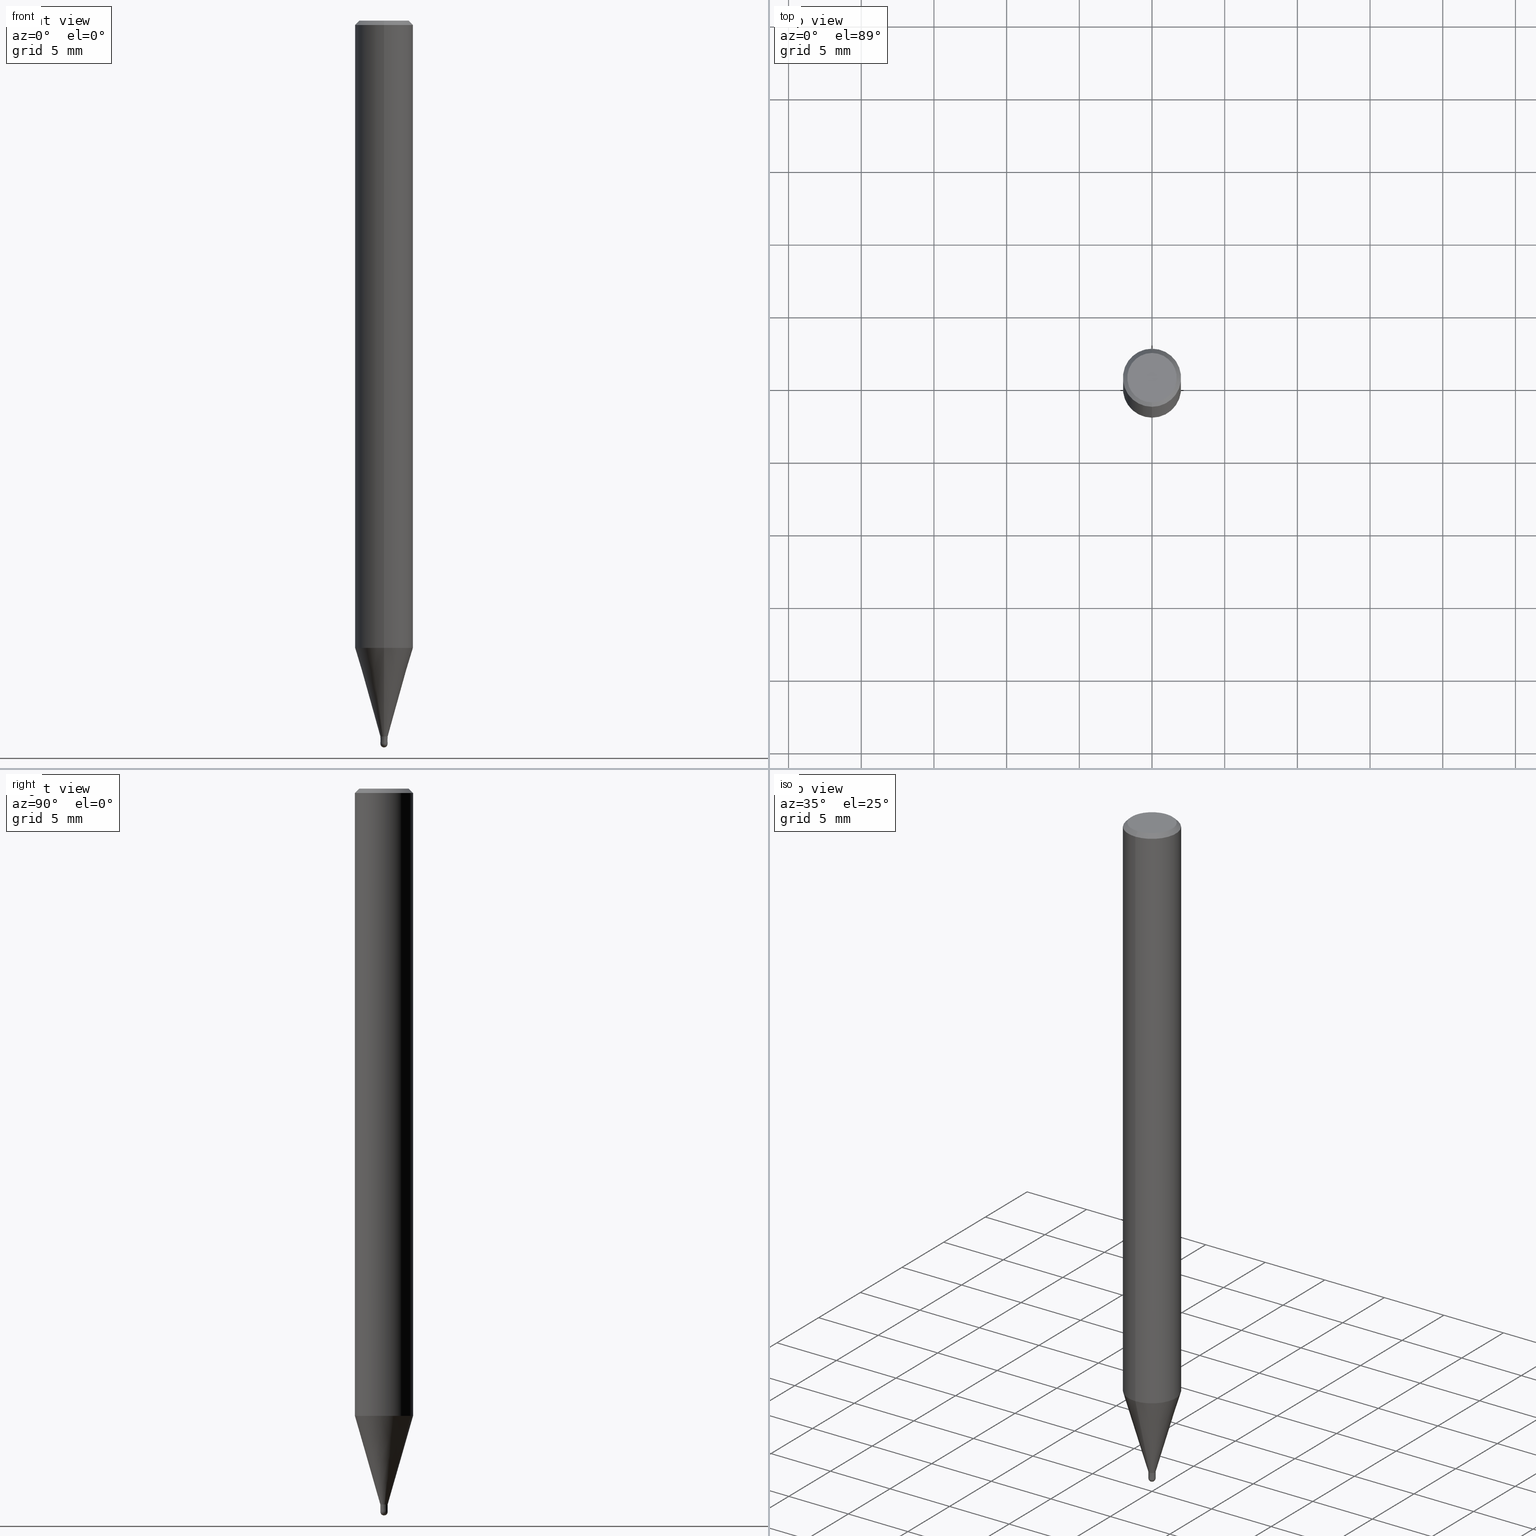
[diagram: canonical four-view strip — front | top / right | iso, engineering-drawing reading convention]
A machine part, canonical four-view strip (front | top / right | iso — engineering-drawing reading convention). The complete STEP part file that produces these views, byte-faithful:
ISO-10303-21;
HEADER;
FILE_DESCRIPTION(('no description'),'unknown implementation level');
FILE_NAME('HSB2005-0075-Huellk.stp','  ',('CIMSOURCE GmbH'),('CADClick - KiM GmbH - www.kimweb.de'),'unknown preprocess','ACIS','unknown authorization');
FILE_SCHEMA(('automotive_design'));
ENDSEC;
DATA;
#1=MECHANICAL_DESIGN_GEOMETRIC_PRESENTATION_REPRESENTATION(' ',(#14,#15,#16,#17,#18,#19,#20,#21,#22,#23,#24,#25,#26,#27,#28,#29,#30,#31,#32,#33,#34,#35,#36,#37,#38,#39,#40,#41,#42,#43,#44,#45,#46,#47,#48,#49,#50,#51,#52,#53,#54,#55,#56,#57,#58,#59,#60,#61,#62,#63,#64,#65,#66),#10);
#2=PRODUCT_DEFINITION_CONTEXT('',#67,'design');
#3=APPLICATION_PROTOCOL_DEFINITION('INTERNATIONAL STANDARD','automotive_design',1994,#67);
#4=PRODUCT_CATEGORY_RELATIONSHIP('NONE','NONE',#68,#69);
#5=SHAPE_DEFINITION_REPRESENTATION(#70,#71);
#6=PRODUCT_DEFINITION_CONTEXT('',#72,'design');
#7=APPLICATION_PROTOCOL_DEFINITION('INTERNATIONAL STANDARD','automotive_design',1994,#72);
#8=PRODUCT_CATEGORY_RELATIONSHIP('NONE','NONE',#73,#74);
#9=SHAPE_DEFINITION_REPRESENTATION(#75,#76);
#10= (GEOMETRIC_REPRESENTATION_CONTEXT(3)GLOBAL_UNCERTAINTY_ASSIGNED_CONTEXT((#79))GLOBAL_UNIT_ASSIGNED_CONTEXT((#81,#82,#83))REPRESENTATION_CONTEXT('NONE','WORKSPACE'));
#14=STYLED_ITEM('',(#85),#86);
#15=STYLED_ITEM('',(#87),#88);
#16=STYLED_ITEM('',(#89),#90);
#17=STYLED_ITEM('',(#91),#92);
#18=STYLED_ITEM('',(#93),#94);
#19=STYLED_ITEM('',(#95),#96);
#20=STYLED_ITEM('',(#97),#98);
#21=STYLED_ITEM('',(#99),#100);
#22=STYLED_ITEM('',(#101),#102);
#23=STYLED_ITEM('',(#103),#104);
#24=STYLED_ITEM('',(#105),#106);
#25=STYLED_ITEM('',(#107),#108);
#26=STYLED_ITEM('',(#109),#110);
#27=STYLED_ITEM('',(#111),#112);
#28=STYLED_ITEM('',(#113),#114);
#29=STYLED_ITEM('',(#115),#116);
#30=STYLED_ITEM('',(#117),#118);
#31=STYLED_ITEM('',(#119),#120);
#32=STYLED_ITEM('',(#121),#122);
#33=STYLED_ITEM('',(#123),#124);
#34=STYLED_ITEM('',(#125),#126);
#35=STYLED_ITEM('',(#127),#128);
#36=STYLED_ITEM('',(#129),#130);
#37=STYLED_ITEM('',(#131),#132);
#38=STYLED_ITEM('',(#133),#134);
#39=STYLED_ITEM('',(#135),#136);
#40=STYLED_ITEM('',(#137),#138);
#41=STYLED_ITEM('',(#139),#140);
#42=STYLED_ITEM('',(#141),#142);
#43=STYLED_ITEM('',(#143),#144);
#44=STYLED_ITEM('',(#145),#146);
#45=STYLED_ITEM('',(#147),#148);
#46=STYLED_ITEM('',(#149),#150);
#47=STYLED_ITEM('',(#151),#152);
#48=STYLED_ITEM('',(#153),#154);
#49=STYLED_ITEM('',(#155),#156);
#50=STYLED_ITEM('',(#157),#158);
#51=STYLED_ITEM('',(#159),#160);
#52=STYLED_ITEM('',(#161),#162);
#53=STYLED_ITEM('',(#163),#164);
#54=STYLED_ITEM('',(#165),#166);
#55=STYLED_ITEM('',(#167),#168);
#56=STYLED_ITEM('',(#169),#170);
#57=STYLED_ITEM('',(#171),#172);
#58=STYLED_ITEM('',(#173),#174);
#59=STYLED_ITEM('',(#175),#176);
#60=STYLED_ITEM('',(#177),#178);
#61=STYLED_ITEM('',(#179),#180);
#62=STYLED_ITEM('',(#181),#182);
#63=STYLED_ITEM('',(#183),#184);
#64=STYLED_ITEM('',(#185),#186);
#65=STYLED_ITEM('',(#187),#188);
#66=STYLED_ITEM('',(#189),#190);
#67=APPLICATION_CONTEXT(' ');
#68=PRODUCT_CATEGORY('part','NONE');
#69=PRODUCT_RELATED_PRODUCT_CATEGORY('detail',' ',(#191));
#70=PRODUCT_DEFINITION_SHAPE('NONE','NONE',#192);
#71=ADVANCED_BREP_SHAPE_REPRESENTATION('1',(#112,#193),#10);
#72=APPLICATION_CONTEXT(' ');
#73=PRODUCT_CATEGORY('part','NONE');
#74=PRODUCT_RELATED_PRODUCT_CATEGORY('detail',' ',(#194));
#75=PRODUCT_DEFINITION_SHAPE('NONE','NONE',#195);
#76=ADVANCED_BREP_SHAPE_REPRESENTATION('2',(#176,#196),#10);
#79=UNCERTAINTY_MEASURE_WITH_UNIT(LENGTH_MEASURE(1.0E-006),#81,'','');
#81= (CONVERSION_BASED_UNIT('MILLIMETRE',#199)LENGTH_UNIT()NAMED_UNIT(#202));
#82= (NAMED_UNIT(#204)PLANE_ANGLE_UNIT()SI_UNIT($,.RADIAN.));
#83= (NAMED_UNIT(#204)SOLID_ANGLE_UNIT()SI_UNIT($,.STERADIAN.));
#85=PRESENTATION_STYLE_ASSIGNMENT((#210));
#86=VERTEX_POINT('',#211);
#87=PRESENTATION_STYLE_ASSIGNMENT((#212));
#88=ADVANCED_FACE('',(#213),#214,.T.);
#89=PRESENTATION_STYLE_ASSIGNMENT((#215));
#90=ADVANCED_FACE('',(#216),#217,.T.);
#91=PRESENTATION_STYLE_ASSIGNMENT((#218));
#92=EDGE_CURVE('',#142,#126,#219,.T.);
#93=PRESENTATION_STYLE_ASSIGNMENT((#220));
#94=EDGE_CURVE('',#126,#86,#221,.T.);
#95=PRESENTATION_STYLE_ASSIGNMENT((#222));
#96=VERTEX_POINT('',#223);
#97=PRESENTATION_STYLE_ASSIGNMENT((#224));
#98=EDGE_CURVE('',#86,#96,#225,.T.);
#99=PRESENTATION_STYLE_ASSIGNMENT((#226));
#100=EDGE_CURVE('',#142,#96,#227,.T.);
#101=PRESENTATION_STYLE_ASSIGNMENT((#228));
#102=EDGE_CURVE('',#166,#184,#229,.T.);
#103=PRESENTATION_STYLE_ASSIGNMENT((#230));
#104=ADVANCED_FACE('',(#231),#232,.T.);
#105=PRESENTATION_STYLE_ASSIGNMENT((#233));
#106=ADVANCED_FACE('',(#234),#235,.T.);
#107=PRESENTATION_STYLE_ASSIGNMENT((#236));
#108=EDGE_CURVE('',#96,#162,#237,.T.);
#109=PRESENTATION_STYLE_ASSIGNMENT((#238));
#110=EDGE_CURVE('',#148,#142,#239,.T.);
#111=PRESENTATION_STYLE_ASSIGNMENT((#240));
#112=MANIFOLD_SOLID_BREP('1',#241);
#113=PRESENTATION_STYLE_ASSIGNMENT((#242));
#114=EDGE_CURVE('',#86,#126,#243,.T.);
#115=PRESENTATION_STYLE_ASSIGNMENT((#244));
#116=EDGE_CURVE('',#186,#128,#245,.T.);
#117=PRESENTATION_STYLE_ASSIGNMENT((#246));
#118=EDGE_CURVE('',#172,#150,#247,.T.);
#119=PRESENTATION_STYLE_ASSIGNMENT((#248));
#120=ADVANCED_FACE('',(#249),#250,.T.);
#121=PRESENTATION_STYLE_ASSIGNMENT((#251));
#122=ADVANCED_FACE('',(#252),#253,.T.);
#123=PRESENTATION_STYLE_ASSIGNMENT((#254));
#124=EDGE_CURVE('',#160,#170,#255,.T.);
#125=PRESENTATION_STYLE_ASSIGNMENT((#256));
#126=VERTEX_POINT('',#257);
#127=PRESENTATION_STYLE_ASSIGNMENT((#258));
#128=VERTEX_POINT('',#259);
#129=PRESENTATION_STYLE_ASSIGNMENT((#260));
#130=EDGE_CURVE('',#172,#150,#261,.T.);
#131=PRESENTATION_STYLE_ASSIGNMENT((#262));
#132=ADVANCED_FACE('',(#263),#264,.T.);
#133=PRESENTATION_STYLE_ASSIGNMENT((#265));
#134=EDGE_CURVE('',#128,#186,#266,.T.);
#135=PRESENTATION_STYLE_ASSIGNMENT((#267));
#136=ADVANCED_FACE('',(#268,#269),#270,.T.);
#137=PRESENTATION_STYLE_ASSIGNMENT((#271));
#138=EDGE_CURVE('',#170,#160,#272,.T.);
#139=PRESENTATION_STYLE_ASSIGNMENT((#273));
#140=EDGE_CURVE('',#148,#162,#274,.T.);
#141=PRESENTATION_STYLE_ASSIGNMENT((#275));
#142=VERTEX_POINT('',#276);
#143=PRESENTATION_STYLE_ASSIGNMENT((#277));
#144=EDGE_CURVE('',#96,#142,#278,.T.);
#145=PRESENTATION_STYLE_ASSIGNMENT((#279));
#146=EDGE_CURVE('',#172,#186,#280,.T.);
#147=PRESENTATION_STYLE_ASSIGNMENT((#281));
#148=VERTEX_POINT('',#282);
#149=PRESENTATION_STYLE_ASSIGNMENT((#283));
#150=VERTEX_POINT('',#284);
#151=PRESENTATION_STYLE_ASSIGNMENT((#285));
#152=EDGE_CURVE('',#162,#148,#286,.T.);
#153=PRESENTATION_STYLE_ASSIGNMENT((#287));
#154=ADVANCED_FACE('',(#288),#289,.T.);
#155=PRESENTATION_STYLE_ASSIGNMENT((#290));
#156=ADVANCED_FACE('',(#291),#292,.T.);
#157=PRESENTATION_STYLE_ASSIGNMENT((#293));
#158=ADVANCED_FACE('',(#294),#295,.T.);
#159=PRESENTATION_STYLE_ASSIGNMENT((#296));
#160=VERTEX_POINT('',#297);
#161=PRESENTATION_STYLE_ASSIGNMENT((#298));
#162=VERTEX_POINT('',#299);
#163=PRESENTATION_STYLE_ASSIGNMENT((#300));
#164=ADVANCED_FACE('',(#301),#302,.T.);
#165=PRESENTATION_STYLE_ASSIGNMENT((#303));
#166=VERTEX_POINT('',#304);
#167=PRESENTATION_STYLE_ASSIGNMENT((#305));
#168=EDGE_CURVE('',#184,#166,#306,.T.);
#169=PRESENTATION_STYLE_ASSIGNMENT((#307));
#170=VERTEX_POINT('',#308);
#171=PRESENTATION_STYLE_ASSIGNMENT((#309));
#172=VERTEX_POINT('',#310);
#173=PRESENTATION_STYLE_ASSIGNMENT((#311));
#174=ADVANCED_FACE('',(#312),#313,.T.);
#175=PRESENTATION_STYLE_ASSIGNMENT((#314));
#176=MANIFOLD_SOLID_BREP('2',#315);
#177=PRESENTATION_STYLE_ASSIGNMENT((#316));
#178=ADVANCED_FACE('',(#317),#318,.T.);
#179=PRESENTATION_STYLE_ASSIGNMENT((#319));
#180=EDGE_CURVE('',#150,#172,#320,.T.);
#181=PRESENTATION_STYLE_ASSIGNMENT((#321));
#182=EDGE_CURVE('',#184,#160,#322,.T.);
#183=PRESENTATION_STYLE_ASSIGNMENT((#323));
#184=VERTEX_POINT('',#324);
#185=PRESENTATION_STYLE_ASSIGNMENT((#325));
#186=VERTEX_POINT('',#326);
#187=PRESENTATION_STYLE_ASSIGNMENT((#327));
#188=EDGE_CURVE('',#170,#166,#328,.T.);
#189=PRESENTATION_STYLE_ASSIGNMENT((#329));
#190=EDGE_CURVE('',#128,#150,#330,.T.);
#191=PRODUCT('1','1','PART-1-DESC',(#331));
#192=PRODUCT_DEFINITION('NONE','NONE',#332,#2);
#193=AXIS2_PLACEMENT_3D('',#333,#334,#335);
#194=PRODUCT('2','2','PART-2-DESC',(#336));
#195=PRODUCT_DEFINITION('NONE','NONE',#337,#6);
#196=AXIS2_PLACEMENT_3D('',#338,#339,#340);
#199=LENGTH_MEASURE_WITH_UNIT(LENGTH_MEASURE(1.0),#341);
#202=DIMENSIONAL_EXPONENTS(1.0,0.0,0.0,0.0,0.0,0.0,0.0);
#204=DIMENSIONAL_EXPONENTS(0.0,0.0,0.0,0.0,0.0,0.0,0.0);
#210=POINT_STYLE(' ',#342,POSITIVE_LENGTH_MEASURE(1.0E-006),#343);
#211=CARTESIAN_POINT('',(0.0,1.7,0.0));
#212=SURFACE_STYLE_USAGE(.BOTH.,#344);
#213=FACE_OUTER_BOUND('',#345,.T.);
#214=SPHERICAL_SURFACE('',#346,0.25);
#215=SURFACE_STYLE_USAGE(.BOTH.,#347);
#216=FACE_OUTER_BOUND('',#348,.T.);
#217=CONICAL_SURFACE('',#349,0.24995,0.000199999997333311);
#218=CURVE_STYLE('',#350,POSITIVE_LENGTH_MEASURE(1.0E-006),#351);
#219=LINE('',#352,#353);
#220=CURVE_STYLE('',#354,POSITIVE_LENGTH_MEASURE(1.0E-006),#355);
#221=CIRCLE('',#356,1.7);
#222=POINT_STYLE(' ',#357,POSITIVE_LENGTH_MEASURE(1.0E-006),#358);
#223=CARTESIAN_POINT('',(0.0,2.0,-0.299999999999997));
#224=CURVE_STYLE('',#359,POSITIVE_LENGTH_MEASURE(1.0E-006),#360);
#225=LINE('',#361,#362);
#226=CURVE_STYLE('',#363,POSITIVE_LENGTH_MEASURE(1.0E-006),#364);
#227=CIRCLE('',#365,2.0);
#228=CURVE_STYLE('',#366,POSITIVE_LENGTH_MEASURE(1.0E-006),#367);
#229=CIRCLE('',#368,1.99995);
#230=SURFACE_STYLE_USAGE(.BOTH.,#369);
#231=FACE_OUTER_BOUND('',#370,.T.);
#232=CONICAL_SURFACE('',#371,1.85,0.785398163397453);
#233=SURFACE_STYLE_USAGE(.BOTH.,#372);
#234=FACE_OUTER_BOUND('',#373,.T.);
#235=CONICAL_SURFACE('',#374,1.12495,0.27925160696619);
#236=CURVE_STYLE('',#375,POSITIVE_LENGTH_MEASURE(1.0E-006),#376);
#237=LINE('',#377,#378);
#238=CURVE_STYLE('',#379,POSITIVE_LENGTH_MEASURE(1.0E-006),#380);
#239=LINE('',#381,#382);
#240=SURFACE_STYLE_USAGE(.BOTH.,#383);
#241=CLOSED_SHELL('',(#164,#178,#104,#136,#120,#158,#154,#106,#132));
#242=CURVE_STYLE('',#384,POSITIVE_LENGTH_MEASURE(1.0E-006),#385);
#243=CIRCLE('',#386,1.7);
#244=CURVE_STYLE('',#387,POSITIVE_LENGTH_MEASURE(1.0E-006),#388);
#245=CIRCLE('',#389,0.2499);
#246=CURVE_STYLE('',#390,POSITIVE_LENGTH_MEASURE(1.0E-006),#391);
#247=CIRCLE('',#392,0.25);
#248=SURFACE_STYLE_USAGE(.BOTH.,#393);
#249=FACE_OUTER_BOUND('',#394,.T.);
#250=PLANE('',#395);
#251=SURFACE_STYLE_USAGE(.BOTH.,#396);
#252=FACE_OUTER_BOUND('',#397,.T.);
#253=PLANE('',#398);
#254=CURVE_STYLE('',#399,POSITIVE_LENGTH_MEASURE(1.0E-006),#400);
#255=CIRCLE('',#401,0.24995);
#256=POINT_STYLE(' ',#402,POSITIVE_LENGTH_MEASURE(1.0E-006),#403);
#257=CARTESIAN_POINT('',(2.08183080149804E-016,-1.7,0.0));
#258=POINT_STYLE(' ',#404,POSITIVE_LENGTH_MEASURE(1.0E-006),#405);
#259=CARTESIAN_POINT('',(0.0,0.2499,-49.25));
#260=CURVE_STYLE('',#406,POSITIVE_LENGTH_MEASURE(1.0E-006),#407);
#261=CIRCLE('',#408,0.25);
#262=SURFACE_STYLE_USAGE(.BOTH.,#409);
#263=FACE_OUTER_BOUND('',#410,.T.);
#264=PLANE('',#411);
#265=CURVE_STYLE('',#412,POSITIVE_LENGTH_MEASURE(1.0E-006),#413);
#266=CIRCLE('',#414,0.2499);
#267=SURFACE_STYLE_USAGE(.BOTH.,#415);
#268=FACE_OUTER_BOUND('',#416,.T.);
#269=FACE_BOUND('',#417,.T.);
#270=PLANE('',#418);
#271=CURVE_STYLE('',#419,POSITIVE_LENGTH_MEASURE(1.0E-006),#420);
#272=CIRCLE('',#421,0.24995);
#273=CURVE_STYLE('',#422,POSITIVE_LENGTH_MEASURE(1.0E-006),#423);
#274=CIRCLE('',#424,2.0);
#275=POINT_STYLE(' ',#425,POSITIVE_LENGTH_MEASURE(1.0E-006),#426);
#276=CARTESIAN_POINT('',(2.44921270764475E-016,-2.0,-0.299999999999997));
#277=CURVE_STYLE('',#427,POSITIVE_LENGTH_MEASURE(1.0E-006),#428);
#278=CIRCLE('',#429,2.0);
#279=CURVE_STYLE('',#430,POSITIVE_LENGTH_MEASURE(1.0E-006),#431);
#280=LINE('',#432,#433);
#281=POINT_STYLE(' ',#434,POSITIVE_LENGTH_MEASURE(1.0E-006),#435);
#282=CARTESIAN_POINT('',(2.44921270764475E-016,-2.0,-43.147));
#283=POINT_STYLE(' ',#436,POSITIVE_LENGTH_MEASURE(1.0E-006),#437);
#284=CARTESIAN_POINT('',(0.0,0.25,-49.75));
#285=CURVE_STYLE('',#438,POSITIVE_LENGTH_MEASURE(1.0E-006),#439);
#286=CIRCLE('',#440,2.0);
#287=SURFACE_STYLE_USAGE(.BOTH.,#441);
#288=FACE_OUTER_BOUND('',#442,.T.);
#289=CYLINDRICAL_SURFACE('',#443,2.0);
#290=SURFACE_STYLE_USAGE(.BOTH.,#444);
#291=FACE_OUTER_BOUND('',#445,.T.);
#292=CONICAL_SURFACE('',#446,0.24995,0.000199999997333311);
#293=SURFACE_STYLE_USAGE(.BOTH.,#447);
#294=FACE_OUTER_BOUND('',#448,.T.);
#295=CONICAL_SURFACE('',#449,1.85,0.785398163397453);
#296=POINT_STYLE(' ',#450,POSITIVE_LENGTH_MEASURE(1.0E-006),#451);
#297=CARTESIAN_POINT('',(0.0,0.24995,-49.25));
#298=POINT_STYLE(' ',#452,POSITIVE_LENGTH_MEASURE(1.0E-006),#453);
#299=CARTESIAN_POINT('',(0.0,2.0,-43.147));
#300=SURFACE_STYLE_USAGE(.BOTH.,#454);
#301=FACE_OUTER_BOUND('',#455,.T.);
#302=CONICAL_SURFACE('',#456,1.12495,0.27925160696619);
#303=POINT_STYLE(' ',#457,POSITIVE_LENGTH_MEASURE(1.0E-006),#458);
#304=CARTESIAN_POINT('',(2.44915147732706E-016,-1.99995,-43.147));
#305=CURVE_STYLE('',#459,POSITIVE_LENGTH_MEASURE(1.0E-006),#460);
#306=CIRCLE('',#461,1.99995);
#307=POINT_STYLE(' ',#462,POSITIVE_LENGTH_MEASURE(1.0E-006),#463);
#308=CARTESIAN_POINT('',(3.06090358137903E-017,-0.24995,-49.25));
#309=POINT_STYLE(' ',#464,POSITIVE_LENGTH_MEASURE(1.0E-006),#465);
#310=CARTESIAN_POINT('',(3.06151588455594E-017,-0.25,-49.75));
#311=SURFACE_STYLE_USAGE(.BOTH.,#466);
#312=FACE_OUTER_BOUND('',#467,.T.);
#313=SPHERICAL_SURFACE('',#468,0.25);
#314=SURFACE_STYLE_USAGE(.BOTH.,#469);
#315=CLOSED_SHELL('',(#174,#156,#122,#90,#88));
#316=SURFACE_STYLE_USAGE(.BOTH.,#470);
#317=FACE_OUTER_BOUND('',#471,.T.);
#318=CYLINDRICAL_SURFACE('',#472,2.0);
#319=CURVE_STYLE('',#473,POSITIVE_LENGTH_MEASURE(1.0E-006),#474);
#320=CIRCLE('',#475,0.25);
#321=CURVE_STYLE('',#476,POSITIVE_LENGTH_MEASURE(1.0E-006),#477);
#322=LINE('',#478,#479);
#323=POINT_STYLE(' ',#480,POSITIVE_LENGTH_MEASURE(1.0E-006),#481);
#324=CARTESIAN_POINT('',(0.0,1.99995,-43.147));
#325=POINT_STYLE(' ',#482,POSITIVE_LENGTH_MEASURE(1.0E-006),#483);
#326=CARTESIAN_POINT('',(3.06029127820212E-017,-0.2499,-49.25));
#327=CURVE_STYLE('',#484,POSITIVE_LENGTH_MEASURE(1.0E-006),#485);
#328=LINE('',#486,#487);
#329=CURVE_STYLE('',#488,POSITIVE_LENGTH_MEASURE(1.0E-006),#489);
#330=LINE('',#490,#491);
#331=PRODUCT_CONTEXT('',#67,'mechanical');
#332=PRODUCT_DEFINITION_FORMATION_WITH_SPECIFIED_SOURCE(' ','NONE',#191,.NOT_KNOWN.);
#333=CARTESIAN_POINT('',(0.0,0.0,0.0));
#334=DIRECTION('',(0.0,0.0,1.0));
#335=DIRECTION('',(1.0,0.0,0.0));
#336=PRODUCT_CONTEXT('',#72,'mechanical');
#337=PRODUCT_DEFINITION_FORMATION_WITH_SPECIFIED_SOURCE(' ','NONE',#194,.NOT_KNOWN.);
#338=CARTESIAN_POINT('',(0.0,0.0,0.0));
#339=DIRECTION('',(0.0,0.0,1.0));
#340=DIRECTION('',(1.0,0.0,0.0));
#341= (NAMED_UNIT(#202)LENGTH_UNIT()SI_UNIT(.MILLI.,.METRE.));
#342=PRE_DEFINED_MARKER('');
#343=COLOUR_RGB('',0.498039215803146,0.498039215803146,0.498039215803146);
#344=SURFACE_SIDE_STYLE('',(#493));
#345=EDGE_LOOP('',(#494,#495));
#346=AXIS2_PLACEMENT_3D('',#496,#497,#498);
#347=SURFACE_SIDE_STYLE('',(#499));
#348=EDGE_LOOP('',(#500,#501,#502,#503));
#349=AXIS2_PLACEMENT_3D('',#504,#505,#506);
#350=DRAUGHTING_PRE_DEFINED_CURVE_FONT('continuous');
#351=COLOUR_RGB('',0.498039215803146,0.498039215803146,0.498039215803146);
#352=CARTESIAN_POINT('',(2.2655217545714E-016,-1.85,-0.149999999999999));
#353=VECTOR('',#507,1.0);
#354=DRAUGHTING_PRE_DEFINED_CURVE_FONT('continuous');
#355=COLOUR_RGB('',0.498039215803146,0.498039215803146,0.498039215803146);
#356=AXIS2_PLACEMENT_3D('',#508,#509,#510);
#357=PRE_DEFINED_MARKER('');
#358=COLOUR_RGB('',0.498039215803146,0.498039215803146,0.498039215803146);
#359=DRAUGHTING_PRE_DEFINED_CURVE_FONT('continuous');
#360=COLOUR_RGB('',0.498039215803146,0.498039215803146,0.498039215803146);
#361=CARTESIAN_POINT('',(-2.2655217545714E-016,1.85,-0.149999999999999));
#362=VECTOR('',#511,1.0);
#363=DRAUGHTING_PRE_DEFINED_CURVE_FONT('continuous');
#364=COLOUR_RGB('',0.498039215803146,0.498039215803146,0.498039215803146);
#365=AXIS2_PLACEMENT_3D('',#512,#513,#514);
#366=DRAUGHTING_PRE_DEFINED_CURVE_FONT('continuous');
#367=COLOUR_RGB('',0.498039215803146,0.498039215803146,0.498039215803146);
#368=AXIS2_PLACEMENT_3D('',#515,#516,#517);
#369=SURFACE_SIDE_STYLE('',(#518));
#370=EDGE_LOOP('',(#519,#520,#521,#522));
#371=AXIS2_PLACEMENT_3D('',#523,#524,#525);
#372=SURFACE_SIDE_STYLE('',(#526));
#373=EDGE_LOOP('',(#527,#528,#529,#530));
#374=AXIS2_PLACEMENT_3D('',#531,#532,#533);
#375=DRAUGHTING_PRE_DEFINED_CURVE_FONT('continuous');
#376=COLOUR_RGB('',0.498039215803146,0.498039215803146,0.498039215803146);
#377=CARTESIAN_POINT('',(-2.44921270764475E-016,2.0,-21.7235));
#378=VECTOR('',#534,1.0);
#379=DRAUGHTING_PRE_DEFINED_CURVE_FONT('continuous');
#380=COLOUR_RGB('',0.498039215803146,0.498039215803146,0.498039215803146);
#381=CARTESIAN_POINT('',(2.44921270764475E-016,-2.0,-21.7235));
#382=VECTOR('',#535,1.0);
#383=SURFACE_SIDE_STYLE('',(#536));
#384=DRAUGHTING_PRE_DEFINED_CURVE_FONT('continuous');
#385=COLOUR_RGB('',0.498039215803146,0.498039215803146,0.498039215803146);
#386=AXIS2_PLACEMENT_3D('',#537,#538,#539);
#387=DRAUGHTING_PRE_DEFINED_CURVE_FONT('continuous');
#388=COLOUR_RGB('',0.800000011920929,0.800000011920929,0.800000011920929);
#389=AXIS2_PLACEMENT_3D('',#540,#541,#542);
#390=DRAUGHTING_PRE_DEFINED_CURVE_FONT('continuous');
#391=COLOUR_RGB('',0.800000011920929,0.800000011920929,0.800000011920929);
#392=AXIS2_PLACEMENT_3D('',#543,#544,#545);
#393=SURFACE_SIDE_STYLE('',(#546));
#394=EDGE_LOOP('',(#547,#548));
#395=AXIS2_PLACEMENT_3D('',#549,#550,#551);
#396=SURFACE_SIDE_STYLE('',(#552));
#397=EDGE_LOOP('',(#553,#554));
#398=AXIS2_PLACEMENT_3D('',#555,#556,#557);
#399=DRAUGHTING_PRE_DEFINED_CURVE_FONT('continuous');
#400=COLOUR_RGB('',0.498039215803146,0.498039215803146,0.498039215803146);
#401=AXIS2_PLACEMENT_3D('',#558,#559,#560);
#402=PRE_DEFINED_MARKER('');
#403=COLOUR_RGB('',0.498039215803146,0.498039215803146,0.498039215803146);
#404=PRE_DEFINED_MARKER('');
#405=COLOUR_RGB('',0.800000011920929,0.800000011920929,0.800000011920929);
#406=DRAUGHTING_PRE_DEFINED_CURVE_FONT('continuous');
#407=COLOUR_RGB('',0.800000011920929,0.800000011920929,0.800000011920929);
#408=AXIS2_PLACEMENT_3D('',#561,#562,#563);
#409=SURFACE_SIDE_STYLE('',(#564));
#410=EDGE_LOOP('',(#565,#566));
#411=AXIS2_PLACEMENT_3D('',#567,#568,#569);
#412=DRAUGHTING_PRE_DEFINED_CURVE_FONT('continuous');
#413=COLOUR_RGB('',0.800000011920929,0.800000011920929,0.800000011920929);
#414=AXIS2_PLACEMENT_3D('',#570,#571,#572);
#415=SURFACE_SIDE_STYLE('',(#573));
#416=EDGE_LOOP('',(#574,#575));
#417=EDGE_LOOP('',(#576,#577));
#418=AXIS2_PLACEMENT_3D('',#578,#579,#580);
#419=DRAUGHTING_PRE_DEFINED_CURVE_FONT('continuous');
#420=COLOUR_RGB('',0.498039215803146,0.498039215803146,0.498039215803146);
#421=AXIS2_PLACEMENT_3D('',#581,#582,#583);
#422=DRAUGHTING_PRE_DEFINED_CURVE_FONT('continuous');
#423=COLOUR_RGB('',0.498039215803146,0.498039215803146,0.498039215803146);
#424=AXIS2_PLACEMENT_3D('',#584,#585,#586);
#425=PRE_DEFINED_MARKER('');
#426=COLOUR_RGB('',0.498039215803146,0.498039215803146,0.498039215803146);
#427=DRAUGHTING_PRE_DEFINED_CURVE_FONT('continuous');
#428=COLOUR_RGB('',0.498039215803146,0.498039215803146,0.498039215803146);
#429=AXIS2_PLACEMENT_3D('',#587,#588,#589);
#430=DRAUGHTING_PRE_DEFINED_CURVE_FONT('continuous');
#431=COLOUR_RGB('',0.800000011920929,0.800000011920929,0.800000011920929);
#432=CARTESIAN_POINT('',(3.06090358137903E-017,-0.24995,-49.5));
#433=VECTOR('',#590,1.0);
#434=PRE_DEFINED_MARKER('');
#435=COLOUR_RGB('',0.498039215803146,0.498039215803146,0.498039215803146);
#436=PRE_DEFINED_MARKER('');
#437=COLOUR_RGB('',0.800000011920929,0.800000011920929,0.800000011920929);
#438=DRAUGHTING_PRE_DEFINED_CURVE_FONT('continuous');
#439=COLOUR_RGB('',0.498039215803146,0.498039215803146,0.498039215803146);
#440=AXIS2_PLACEMENT_3D('',#591,#592,#593);
#441=SURFACE_SIDE_STYLE('',(#594));
#442=EDGE_LOOP('',(#595,#596,#597,#598));
#443=AXIS2_PLACEMENT_3D('',#599,#600,#601);
#444=SURFACE_SIDE_STYLE('',(#602));
#445=EDGE_LOOP('',(#603,#604,#605,#606));
#446=AXIS2_PLACEMENT_3D('',#607,#608,#609);
#447=SURFACE_SIDE_STYLE('',(#610));
#448=EDGE_LOOP('',(#611,#612,#613,#614));
#449=AXIS2_PLACEMENT_3D('',#615,#616,#617);
#450=PRE_DEFINED_MARKER('');
#451=COLOUR_RGB('',0.498039215803146,0.498039215803146,0.498039215803146);
#452=PRE_DEFINED_MARKER('');
#453=COLOUR_RGB('',0.498039215803146,0.498039215803146,0.498039215803146);
#454=SURFACE_SIDE_STYLE('',(#618));
#455=EDGE_LOOP('',(#619,#620,#621,#622));
#456=AXIS2_PLACEMENT_3D('',#623,#624,#625);
#457=PRE_DEFINED_MARKER('');
#458=COLOUR_RGB('',0.498039215803146,0.498039215803146,0.498039215803146);
#459=DRAUGHTING_PRE_DEFINED_CURVE_FONT('continuous');
#460=COLOUR_RGB('',0.498039215803146,0.498039215803146,0.498039215803146);
#461=AXIS2_PLACEMENT_3D('',#626,#627,#628);
#462=PRE_DEFINED_MARKER('');
#463=COLOUR_RGB('',0.498039215803146,0.498039215803146,0.498039215803146);
#464=PRE_DEFINED_MARKER('');
#465=COLOUR_RGB('',0.800000011920929,0.800000011920929,0.800000011920929);
#466=SURFACE_SIDE_STYLE('',(#629));
#467=EDGE_LOOP('',(#630,#631));
#468=AXIS2_PLACEMENT_3D('',#632,#633,#634);
#469=SURFACE_SIDE_STYLE('',(#635));
#470=SURFACE_SIDE_STYLE('',(#636));
#471=EDGE_LOOP('',(#637,#638,#639,#640));
#472=AXIS2_PLACEMENT_3D('',#641,#642,#643);
#473=DRAUGHTING_PRE_DEFINED_CURVE_FONT('continuous');
#474=COLOUR_RGB('',0.800000011920929,0.800000011920929,0.800000011920929);
#475=AXIS2_PLACEMENT_3D('',#644,#645,#646);
#476=DRAUGHTING_PRE_DEFINED_CURVE_FONT('continuous');
#477=COLOUR_RGB('',0.498039215803146,0.498039215803146,0.498039215803146);
#478=CARTESIAN_POINT('',(-1.37762091773248E-016,1.12495,-46.1985));
#479=VECTOR('',#647,1.0);
#480=PRE_DEFINED_MARKER('');
#481=COLOUR_RGB('',0.498039215803146,0.498039215803146,0.498039215803146);
#482=PRE_DEFINED_MARKER('');
#483=COLOUR_RGB('',0.800000011920929,0.800000011920929,0.800000011920929);
#484=DRAUGHTING_PRE_DEFINED_CURVE_FONT('continuous');
#485=COLOUR_RGB('',0.498039215803146,0.498039215803146,0.498039215803146);
#486=CARTESIAN_POINT('',(1.37762091773248E-016,-1.12495,-46.1985));
#487=VECTOR('',#648,1.0);
#488=DRAUGHTING_PRE_DEFINED_CURVE_FONT('continuous');
#489=COLOUR_RGB('',0.800000011920929,0.800000011920929,0.800000011920929);
#490=CARTESIAN_POINT('',(-3.06090358137903E-017,0.24995,-49.5));
#491=VECTOR('',#649,1.0);
#493=SURFACE_STYLE_FILL_AREA(#650);
#494=ORIENTED_EDGE('',*,*,#118,.T.);
#495=ORIENTED_EDGE('',*,*,#180,.T.);
#496=CARTESIAN_POINT('',(0.0,0.0,-49.75));
#497=DIRECTION('',(0.0,1.0,0.0));
#498=DIRECTION('',(0.0,0.0,-1.0));
#499=SURFACE_STYLE_FILL_AREA(#651);
#500=ORIENTED_EDGE('',*,*,#190,.T.);
#501=ORIENTED_EDGE('',*,*,#130,.F.);
#502=ORIENTED_EDGE('',*,*,#146,.T.);
#503=ORIENTED_EDGE('',*,*,#116,.T.);
#504=CARTESIAN_POINT('',(0.0,0.0,-49.5));
#505=DIRECTION('',(0.0,-0.0,-1.0));
#506=DIRECTION('',(0.0,1.0,0.0));
#507=DIRECTION('',(-8.6592745707194E-017,0.707106781186551,0.707106781186544));
#508=CARTESIAN_POINT('',(0.0,0.0,0.0));
#509=DIRECTION('',(0.0,0.0,-1.0));
#510=DIRECTION('',(0.0,1.0,0.0));
#511=DIRECTION('',(-8.6592745707194E-017,0.707106781186551,-0.707106781186544));
#512=CARTESIAN_POINT('',(0.0,0.0,-0.299999999999997));
#513=DIRECTION('',(0.0,0.0,-1.0));
#514=DIRECTION('',(0.0,1.0,0.0));
#515=CARTESIAN_POINT('',(0.0,0.0,-43.147));
#516=DIRECTION('',(0.0,0.0,-1.0));
#517=DIRECTION('',(0.0,1.0,0.0));
#518=SURFACE_STYLE_FILL_AREA(#652);
#519=ORIENTED_EDGE('',*,*,#98,.F.);
#520=ORIENTED_EDGE('',*,*,#114,.T.);
#521=ORIENTED_EDGE('',*,*,#92,.F.);
#522=ORIENTED_EDGE('',*,*,#144,.F.);
#523=CARTESIAN_POINT('',(0.0,0.0,-0.149999999999999));
#524=DIRECTION('',(0.0,-0.0,-1.0));
#525=DIRECTION('',(0.0,1.0,0.0));
#526=SURFACE_STYLE_FILL_AREA(#653);
#527=ORIENTED_EDGE('',*,*,#182,.T.);
#528=ORIENTED_EDGE('',*,*,#138,.F.);
#529=ORIENTED_EDGE('',*,*,#188,.T.);
#530=ORIENTED_EDGE('',*,*,#102,.T.);
#531=CARTESIAN_POINT('',(0.0,0.0,-46.1985));
#532=DIRECTION('',(-0.0,-0.0,1.0));
#533=DIRECTION('',(0.0,1.0,0.0));
#534=DIRECTION('',(0.0,0.0,-1.0));
#535=DIRECTION('',(-0.0,-0.0,1.0));
#536=SURFACE_STYLE_FILL_AREA(#654);
#537=CARTESIAN_POINT('',(0.0,0.0,0.0));
#538=DIRECTION('',(0.0,0.0,-1.0));
#539=DIRECTION('',(0.0,1.0,0.0));
#540=CARTESIAN_POINT('',(0.0,0.0,-49.25));
#541=DIRECTION('',(0.0,0.0,-1.0));
#542=DIRECTION('',(0.0,1.0,0.0));
#543=CARTESIAN_POINT('',(0.0,0.0,-49.75));
#544=DIRECTION('',(1.0,0.0,1.22460635382238E-016));
#545=DIRECTION('',(-1.22460635382238E-016,0.0,1.0));
#546=SURFACE_STYLE_FILL_AREA(#655);
#547=ORIENTED_EDGE('',*,*,#114,.F.);
#548=ORIENTED_EDGE('',*,*,#94,.F.);
#549=CARTESIAN_POINT('',(0.0,0.85,0.0));
#550=DIRECTION('',(-0.0,0.0,1.0));
#551=DIRECTION('',(0.0,-1.0,0.0));
#552=SURFACE_STYLE_FILL_AREA(#656);
#553=ORIENTED_EDGE('',*,*,#134,.F.);
#554=ORIENTED_EDGE('',*,*,#116,.F.);
#555=CARTESIAN_POINT('',(0.0,0.12495,-49.25));
#556=DIRECTION('',(-0.0,0.0,1.0));
#557=DIRECTION('',(0.0,-1.0,0.0));
#558=CARTESIAN_POINT('',(0.0,0.0,-49.25));
#559=DIRECTION('',(0.0,0.0,-1.0));
#560=DIRECTION('',(0.0,1.0,0.0));
#561=CARTESIAN_POINT('',(0.0,0.0,-49.75));
#562=DIRECTION('',(0.0,0.0,-1.0));
#563=DIRECTION('',(0.0,1.0,0.0));
#564=SURFACE_STYLE_FILL_AREA(#657);
#565=ORIENTED_EDGE('',*,*,#124,.T.);
#566=ORIENTED_EDGE('',*,*,#138,.T.);
#567=CARTESIAN_POINT('',(0.0,0.124975,-49.25));
#568=DIRECTION('',(0.0,0.0,-1.0));
#569=DIRECTION('',(0.0,1.0,0.0));
#570=CARTESIAN_POINT('',(0.0,0.0,-49.25));
#571=DIRECTION('',(0.0,0.0,-1.0));
#572=DIRECTION('',(0.0,1.0,0.0));
#573=SURFACE_STYLE_FILL_AREA(#658);
#574=ORIENTED_EDGE('',*,*,#152,.T.);
#575=ORIENTED_EDGE('',*,*,#140,.T.);
#576=ORIENTED_EDGE('',*,*,#168,.F.);
#577=ORIENTED_EDGE('',*,*,#102,.F.);
#578=CARTESIAN_POINT('',(0.0,1.0,-43.147));
#579=DIRECTION('',(0.0,0.0,-1.0));
#580=DIRECTION('',(0.0,1.0,0.0));
#581=CARTESIAN_POINT('',(0.0,0.0,-49.25));
#582=DIRECTION('',(0.0,0.0,-1.0));
#583=DIRECTION('',(0.0,1.0,0.0));
#584=CARTESIAN_POINT('',(0.0,0.0,-43.147));
#585=DIRECTION('',(0.0,0.0,-1.0));
#586=DIRECTION('',(0.0,1.0,0.0));
#587=CARTESIAN_POINT('',(0.0,0.0,-0.299999999999997));
#588=DIRECTION('',(0.0,0.0,-1.0));
#589=DIRECTION('',(0.0,1.0,0.0));
#590=DIRECTION('',(-2.44921265866023E-020,0.000199999995999978,0.999999980000001));
#591=CARTESIAN_POINT('',(0.0,0.0,-43.147));
#592=DIRECTION('',(0.0,0.0,-1.0));
#593=DIRECTION('',(0.0,1.0,0.0));
#594=SURFACE_STYLE_FILL_AREA(#659);
#595=ORIENTED_EDGE('',*,*,#108,.T.);
#596=ORIENTED_EDGE('',*,*,#140,.F.);
#597=ORIENTED_EDGE('',*,*,#110,.T.);
#598=ORIENTED_EDGE('',*,*,#100,.T.);
#599=CARTESIAN_POINT('',(0.0,0.0,-21.7235));
#600=DIRECTION('',(-0.0,-0.0,1.0));
#601=DIRECTION('',(0.0,1.0,0.0));
#602=SURFACE_STYLE_FILL_AREA(#660);
#603=ORIENTED_EDGE('',*,*,#190,.F.);
#604=ORIENTED_EDGE('',*,*,#134,.T.);
#605=ORIENTED_EDGE('',*,*,#146,.F.);
#606=ORIENTED_EDGE('',*,*,#180,.F.);
#607=CARTESIAN_POINT('',(0.0,0.0,-49.5));
#608=DIRECTION('',(0.0,-0.0,-1.0));
#609=DIRECTION('',(0.0,1.0,0.0));
#610=SURFACE_STYLE_FILL_AREA(#661);
#611=ORIENTED_EDGE('',*,*,#98,.T.);
#612=ORIENTED_EDGE('',*,*,#100,.F.);
#613=ORIENTED_EDGE('',*,*,#92,.T.);
#614=ORIENTED_EDGE('',*,*,#94,.T.);
#615=CARTESIAN_POINT('',(0.0,0.0,-0.149999999999999));
#616=DIRECTION('',(0.0,-0.0,-1.0));
#617=DIRECTION('',(0.0,1.0,0.0));
#618=SURFACE_STYLE_FILL_AREA(#662);
#619=ORIENTED_EDGE('',*,*,#182,.F.);
#620=ORIENTED_EDGE('',*,*,#168,.T.);
#621=ORIENTED_EDGE('',*,*,#188,.F.);
#622=ORIENTED_EDGE('',*,*,#124,.F.);
#623=CARTESIAN_POINT('',(0.0,0.0,-46.1985));
#624=DIRECTION('',(-0.0,-0.0,1.0));
#625=DIRECTION('',(0.0,1.0,0.0));
#626=CARTESIAN_POINT('',(0.0,0.0,-43.147));
#627=DIRECTION('',(0.0,0.0,-1.0));
#628=DIRECTION('',(0.0,1.0,0.0));
#629=SURFACE_STYLE_FILL_AREA(#663);
#630=ORIENTED_EDGE('',*,*,#118,.F.);
#631=ORIENTED_EDGE('',*,*,#130,.T.);
#632=CARTESIAN_POINT('',(0.0,0.0,-49.75));
#633=DIRECTION('',(0.0,1.0,0.0));
#634=DIRECTION('',(0.0,0.0,-1.0));
#635=SURFACE_STYLE_FILL_AREA(#664);
#636=SURFACE_STYLE_FILL_AREA(#665);
#637=ORIENTED_EDGE('',*,*,#108,.F.);
#638=ORIENTED_EDGE('',*,*,#144,.T.);
#639=ORIENTED_EDGE('',*,*,#110,.F.);
#640=ORIENTED_EDGE('',*,*,#152,.F.);
#641=CARTESIAN_POINT('',(0.0,0.0,-21.7235));
#642=DIRECTION('',(-0.0,-0.0,1.0));
#643=DIRECTION('',(0.0,1.0,0.0));
#644=CARTESIAN_POINT('',(0.0,0.0,-49.75));
#645=DIRECTION('',(0.0,0.0,-1.0));
#646=DIRECTION('',(0.0,1.0,0.0));
#647=DIRECTION('',(3.37545993768291E-017,-0.275636324043808,-0.961261991793921));
#648=DIRECTION('',(3.37545993768291E-017,-0.275636324043808,0.961261991793921));
#649=DIRECTION('',(-2.44921265866023E-020,0.000199999995999978,-0.999999980000001));
#650=FILL_AREA_STYLE('',(#666));
#651=FILL_AREA_STYLE('',(#667));
#652=FILL_AREA_STYLE('',(#668));
#653=FILL_AREA_STYLE('',(#669));
#654=FILL_AREA_STYLE('',(#670));
#655=FILL_AREA_STYLE('',(#671));
#656=FILL_AREA_STYLE('',(#672));
#657=FILL_AREA_STYLE('',(#673));
#658=FILL_AREA_STYLE('',(#674));
#659=FILL_AREA_STYLE('',(#675));
#660=FILL_AREA_STYLE('',(#676));
#661=FILL_AREA_STYLE('',(#677));
#662=FILL_AREA_STYLE('',(#678));
#663=FILL_AREA_STYLE('',(#679));
#664=FILL_AREA_STYLE('',(#680));
#665=FILL_AREA_STYLE('',(#681));
#666=FILL_AREA_STYLE_COLOUR('',#682);
#667=FILL_AREA_STYLE_COLOUR('',#683);
#668=FILL_AREA_STYLE_COLOUR('',#684);
#669=FILL_AREA_STYLE_COLOUR('',#685);
#670=FILL_AREA_STYLE_COLOUR('',#686);
#671=FILL_AREA_STYLE_COLOUR('',#687);
#672=FILL_AREA_STYLE_COLOUR('',#688);
#673=FILL_AREA_STYLE_COLOUR('',#689);
#674=FILL_AREA_STYLE_COLOUR('',#690);
#675=FILL_AREA_STYLE_COLOUR('',#691);
#676=FILL_AREA_STYLE_COLOUR('',#692);
#677=FILL_AREA_STYLE_COLOUR('',#693);
#678=FILL_AREA_STYLE_COLOUR('',#694);
#679=FILL_AREA_STYLE_COLOUR('',#695);
#680=FILL_AREA_STYLE_COLOUR('',#696);
#681=FILL_AREA_STYLE_COLOUR('',#697);
#682=COLOUR_RGB('',0.800000011920929,0.800000011920929,0.800000011920929);
#683=COLOUR_RGB('',0.800000011920929,0.800000011920929,0.800000011920929);
#684=COLOUR_RGB('',0.498039215803146,0.498039215803146,0.498039215803146);
#685=COLOUR_RGB('',0.498039215803146,0.498039215803146,0.498039215803146);
#686=COLOUR_RGB('',0.498039215803146,0.498039215803146,0.498039215803146);
#687=COLOUR_RGB('',0.498039215803146,0.498039215803146,0.498039215803146);
#688=COLOUR_RGB('',0.800000011920929,0.800000011920929,0.800000011920929);
#689=COLOUR_RGB('',0.498039215803146,0.498039215803146,0.498039215803146);
#690=COLOUR_RGB('',0.498039215803146,0.498039215803146,0.498039215803146);
#691=COLOUR_RGB('',0.498039215803146,0.498039215803146,0.498039215803146);
#692=COLOUR_RGB('',0.800000011920929,0.800000011920929,0.800000011920929);
#693=COLOUR_RGB('',0.498039215803146,0.498039215803146,0.498039215803146);
#694=COLOUR_RGB('',0.498039215803146,0.498039215803146,0.498039215803146);
#695=COLOUR_RGB('',0.800000011920929,0.800000011920929,0.800000011920929);
#696=COLOUR_RGB('',0.800000011920929,0.800000011920929,0.800000011920929);
#697=COLOUR_RGB('',0.498039215803146,0.498039215803146,0.498039215803146);
#698=AXIS2_PLACEMENT_3D('PCS',#699,#700,#701);
#699=CARTESIAN_POINT('',(0.0,0.0,0.0));
#700=DIRECTION('',(0.0,0.0,1.0));
#701=DIRECTION('',(1.0,0.0,0.0));
#702=AXIS2_PLACEMENT_3D('CIP',#703,#704,#705);
#703=CARTESIAN_POINT('',(0.0,0.0,-50.0));
#704=DIRECTION('',(0.0,0.0,1.0));
#705=DIRECTION('',(1.0,0.0,0.0));
#706=AXIS2_PLACEMENT_3D('CRP',#707,#708,#709);
#707=CARTESIAN_POINT('',(-0.25,0.0,-50.0));
#708=DIRECTION('',(0.0,0.0,1.0));
#709=DIRECTION('',(1.0,0.0,0.0));
#710=AXIS2_PLACEMENT_3D('MCS',#711,#712,#713);
#711=CARTESIAN_POINT('',(0.0,0.0,-43.147));
#712=DIRECTION('',(0.0,0.0,1.0));
#713=DIRECTION('',(1.0,0.0,0.0));
#714=CONSTRUCTIVE_GEOMETRY_REPRESENTATION_RELATIONSHIP('coordinate systems',$,#71,#715);
#715=CONSTRUCTIVE_GEOMETRY_REPRESENTATION('coordinate systems',(#698,#702,#706,#710),#10);
ENDSEC;
END-ISO-10303-21;
